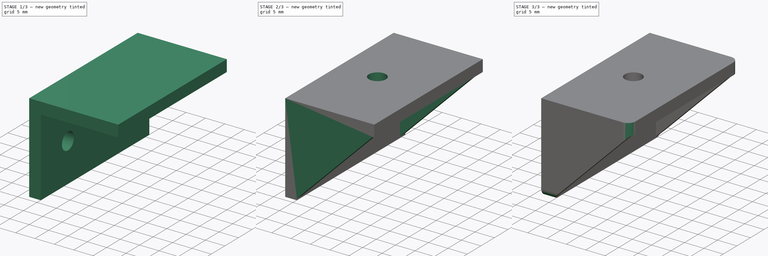
[diagram: build sequence overview — one tinted view per stage of 3, left to right]
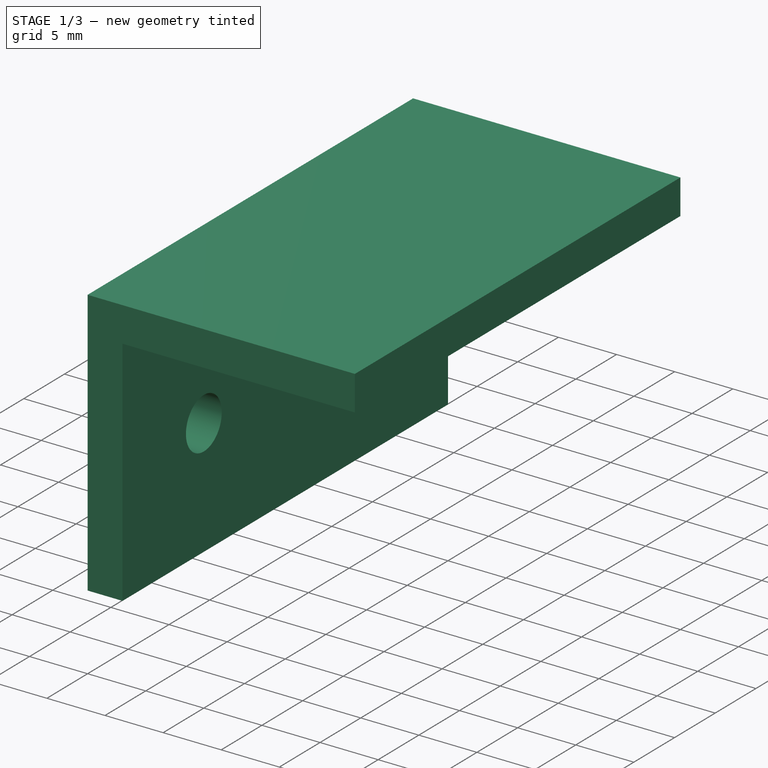
[diagram: stage 1 of 3 — iso view after this stage's code; geometry added in this stage tinted green]
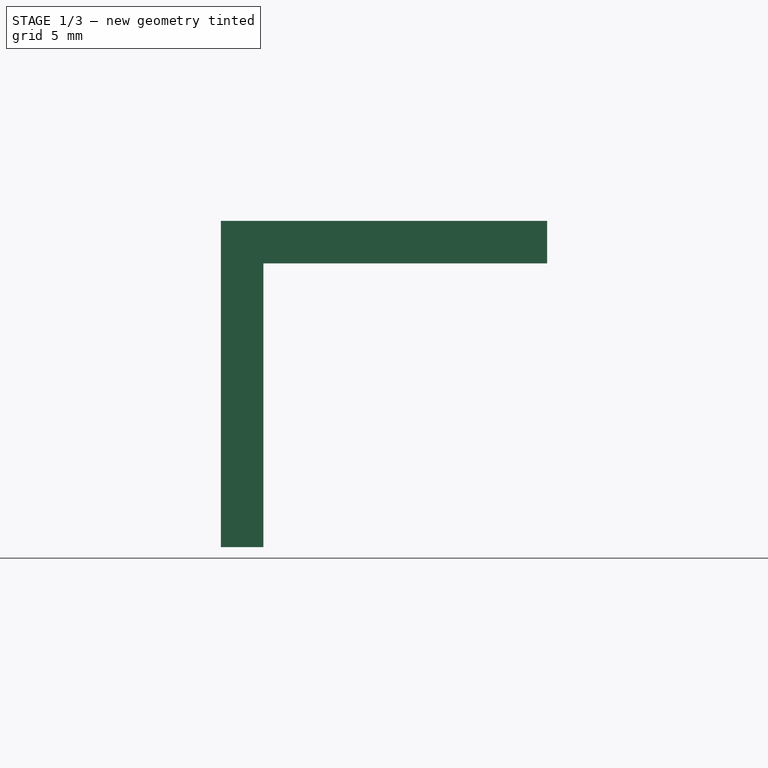
[diagram: stage 1 of 3 — front view after this stage's code; geometry added in this stage tinted green]
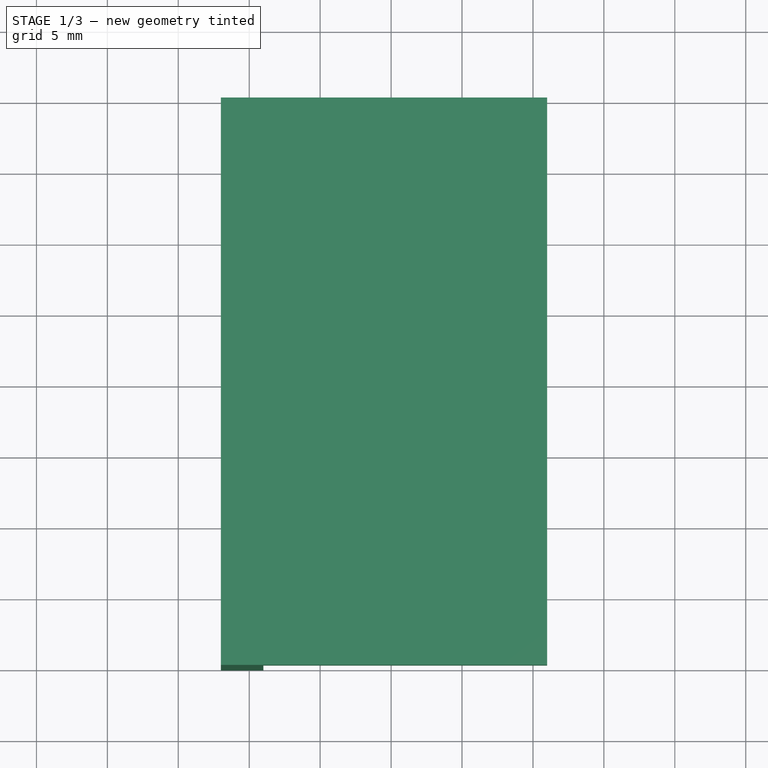
[diagram: stage 1 of 3 — top view after this stage's code; geometry added in this stage tinted green]
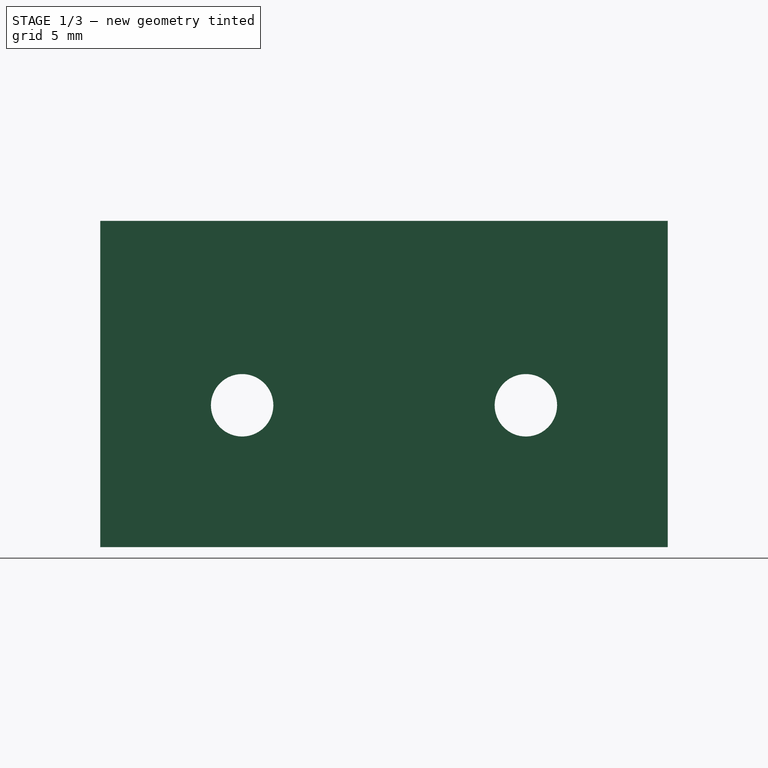
[diagram: stage 1 of 3 — right view after this stage's code; geometry added in this stage tinted green]
FCSTD DOCUMENT  (FreeCAD 0.16R6707 (Git))
Label: Electronics_Plate_Bracket
License: CreativeCommons Attribution-NonCommercial
LicenseURL: http://creativecommons.org/licenses/by-nc/4.0/
objects: Sketcher::SketchObject×5, PartDesign::Pad×4, PartDesign::Fillet×2, Part::Feature×1, PartDesign::Pocket×1
note: 18 computed .brp shape members not serialized (recipe doc carries the construction recipe); baked Part::Feature solids carry a one-line shape summary decoded from their .brp

FEATURE [Sketcher::SketchObject] Sketch
  Placement = pos=(-157,0,0) rot=(0.57735,0.57735,0.57735;2.0944rad)
  sketch-geometry (7):
    g0: LineSegment StartX=60 StartY=13 StartZ=0 EndX=100 EndY=13 EndZ=0
    g1: LineSegment StartX=100 StartY=13 StartZ=0 EndX=100 EndY=-10 EndZ=0
    g2: LineSegment StartX=100 StartY=-10 StartZ=0 EndX=60 EndY=-10 EndZ=0
    g3: LineSegment StartX=60 StartY=-10 StartZ=0 EndX=60 EndY=13 EndZ=0
    g4: Circle CenterX=70 CenterY=0 CenterZ=0 NormalX=0 NormalY=0 NormalZ=1 Radius=2.2
    g5: Circle CenterX=90 CenterY=0 CenterZ=0 NormalX=0 NormalY=0 NormalZ=1 Radius=2.2
    g6: LineSegment [constr] StartX=80 StartY=-10 StartZ=0 EndX=80 EndY=13 EndZ=0
  constraints (22):
    c: Coincident(g0,g1)
    c: Coincident(g1,g2)
    c: Coincident(g2,g3)
    c: Coincident(g3,g0)
    c: Horizontal(g0)
    c: Horizontal(g2)
    c: Vertical(g1)
    c: Vertical(g3)
    c: DistanceY(g1,g-1) = 10
    c: DistanceY(g1,g1) = 23
    c: DistanceX(g0,g0) = 40
    c: PointOnObject(g4,g-1)
    c: PointOnObject(g5,g-1)
    c: Radius(g4) = 2.2
    c: Equal(g4,g5)
    c: DistanceX(g-1,g2) = 60
    c: DistanceX(g4,g5) = 20
    c: PointOnObject(g6,g2)
    c: PointOnObject(g6,g0)
    c: Vertical(g6)
    c: DistanceX(g0,g6) = 20
    c: Symmetric(g4,g5,g6)
FEATURE [PartDesign::Pad] Pad
  Length = 3
  Length2 = 100
  Placement = pos=(-157,0,0) rot=(0.57735,0.57735,0.57735;2.0944rad)
  Sketch = -> Sketch
  Type = 0
FEATURE [Part::Feature] Part__Feature  label="Electronics_Plate"
  Placement = pos=(0,0,16) rot=(0,0,1;0rad)
  shape: bbox 372.8 x 418.1 x 5 mm, 24 faces (baked)
FEATURE [Sketcher::SketchObject] Sketch001
  ExternalGeometry = -> [Pad]
  Placement = pos=(-154,0,0) rot=(0.57735,0.57735,0.57735;2.0944rad)
  Support = -> Pad [Face8]
  sketch-geometry (4):
    g0: LineSegment StartX=60 StartY=13 StartZ=0 EndX=100 EndY=13 EndZ=0
    g1: LineSegment StartX=100 StartY=13 StartZ=0 EndX=100 EndY=10 EndZ=0
    g2: LineSegment StartX=100 StartY=10 StartZ=0 EndX=60 EndY=10 EndZ=0
    g3: LineSegment StartX=60 StartY=10 StartZ=0 EndX=60 EndY=13 EndZ=0
  constraints (11):
    c: Coincident(g0,g1)
    c: Coincident(g1,g2)
    c: Coincident(g2,g3)
    c: Coincident(g3,g0)
    c: Horizontal(g0)
    c: Horizontal(g2)
    c: Vertical(g1)
    c: Vertical(g3)
    c: Coincident(g0,g-3)
    c: Coincident(g0,g-3)
    c: DistanceY(g1,g1) = 3
FEATURE [PartDesign::Pad] Pad001
  Length = 20
  Length2 = 100
  Placement = pos=(-157,0,0) rot=(0.57735,0.57735,0.57735;2.0944rad)
  Sketch = -> Sketch001
  Type = 0
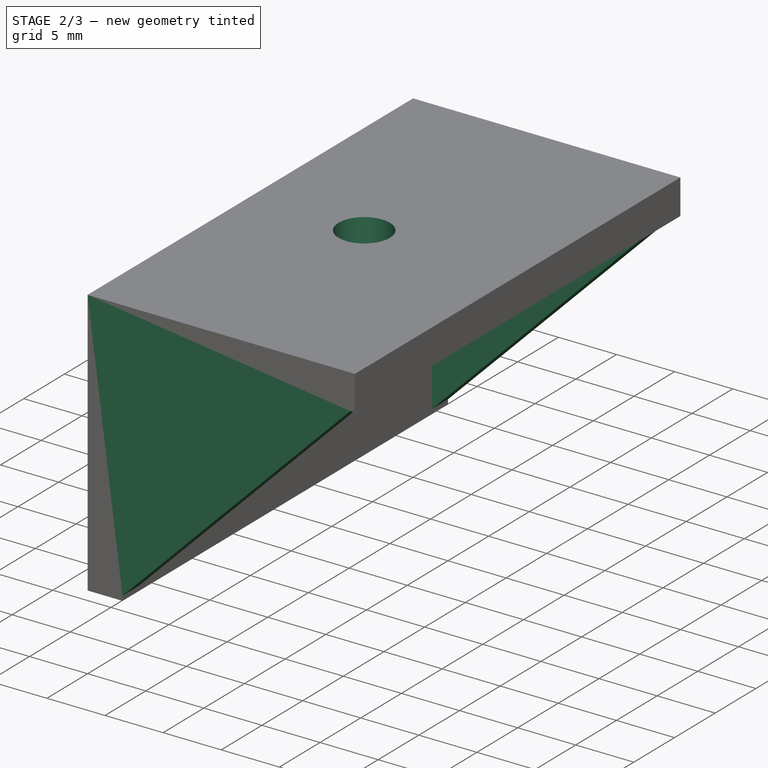
[diagram: stage 2 of 3 — iso view after this stage's code; geometry added in this stage tinted green]
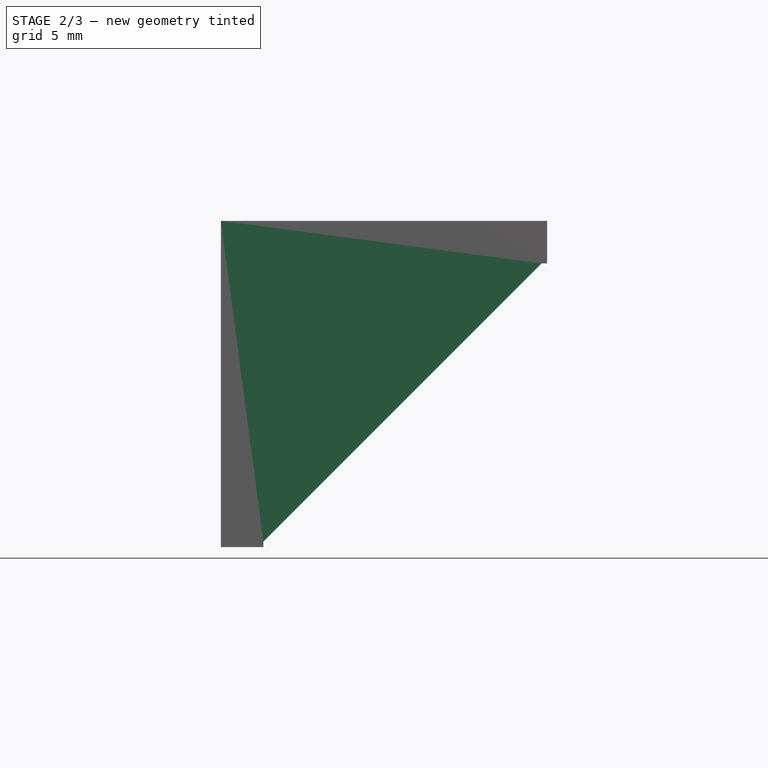
[diagram: stage 2 of 3 — front view after this stage's code; geometry added in this stage tinted green]
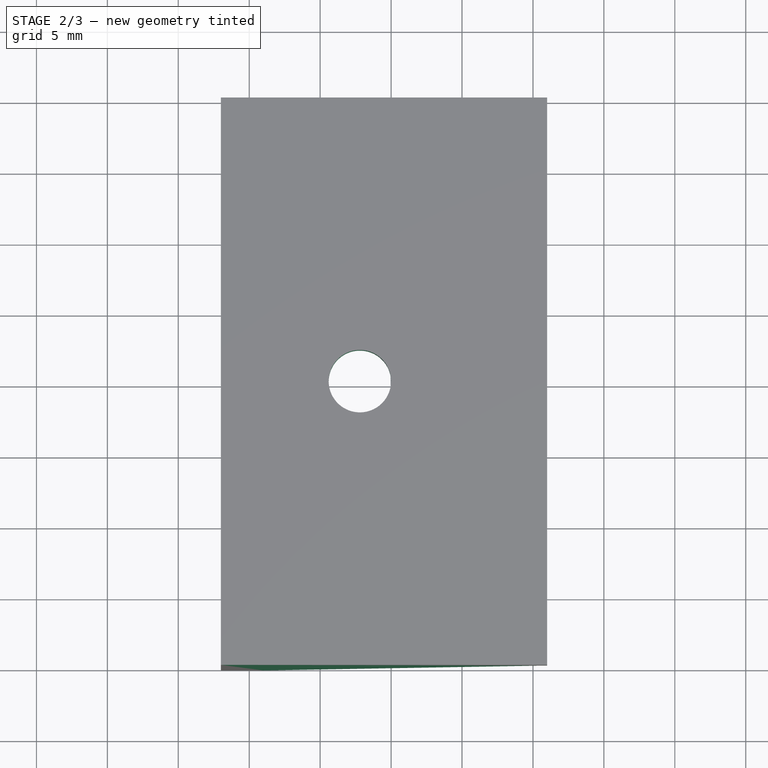
[diagram: stage 2 of 3 — top view after this stage's code; geometry added in this stage tinted green]
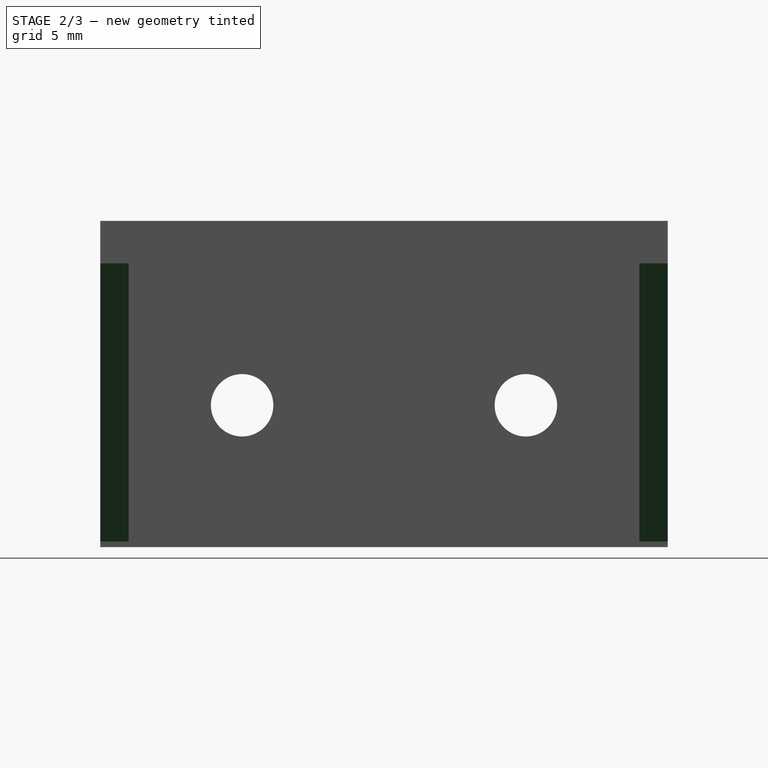
[diagram: stage 2 of 3 — right view after this stage's code; geometry added in this stage tinted green]
FEATURE [Sketcher::SketchObject] Sketch002
  ExternalGeometry = -> [Pad001]
  Placement = pos=(-157,0,13) rot=(0,0,-1;1.5708rad)
  Support = -> Pad001 [Face8]
  sketch-geometry (1):
    g0: Circle CenterX=-80 CenterY=9.8 CenterZ=0 NormalX=0 NormalY=0 NormalZ=1 Radius=2.2
  constraints (3):
    c: DistanceY(g-3,g0) = 9.8
    c: DistanceX(g0,g-3) = 20
    c: Radius(g0) = 2.2
FEATURE [PartDesign::Pocket] Pocket
  Length = 5
  Placement = pos=(-157,0,0) rot=(0.57735,0.57735,0.57735;2.0944rad)
  Sketch = -> Sketch002
  Type = 0
FEATURE [Sketcher::SketchObject] Sketch003
  Placement = pos=(-157,60,0) rot=(0.57735,0.57735,-0.57735;2.0944rad)
  Support = -> Pocket [Face5]
  sketch-geometry (3):
    g0: LineSegment StartX=-10.2 StartY=22.8 StartZ=0 EndX=-10.2 EndY=2.8 EndZ=0
    g1: LineSegment StartX=-10.2 StartY=2.8 StartZ=0 EndX=9.8 EndY=2.8 EndZ=0
    g2: LineSegment StartX=9.8 StartY=2.8 StartZ=0 EndX=-10.2 EndY=22.8 EndZ=0
  constraints (9):
    c: Coincident(g0,g1)
    c: Coincident(g1,g2)
    c: Coincident(g2,g0)
    c: Horizontal(g1)
    c: Vertical(g0)
    c: DistanceY(g-1,g1) = 2.8
    c: DistanceX(g0,g-1) = 10.2
    c: DistanceY(g0,g0) = 20
    c: Equal(g1,g0)
FEATURE [PartDesign::Pad] Pad002
  Length = 2
  Length2 = 100
  Placement = pos=(-157,0,0) rot=(0.57735,0.57735,0.57735;2.0944rad)
  Reversed = true
  Sketch = -> Sketch003
  Type = 0
FEATURE [Sketcher::SketchObject] Sketch004
  Placement = pos=(-157,100,0) rot=(0.57735,0.57735,0.57735;4.18879rad)
  Support = -> Pad002 [Face3]
  sketch-geometry (3):
    g0: LineSegment StartX=-9.8 StartY=2.8 StartZ=0 EndX=10.2 EndY=2.8 EndZ=0
    g1: LineSegment StartX=10.2 StartY=2.8 StartZ=0 EndX=10.2 EndY=22.8 EndZ=0
    g2: LineSegment StartX=10.2 StartY=22.8 StartZ=0 EndX=-9.8 EndY=2.8 EndZ=0
  constraints (9):
    c: Horizontal(g0)
    c: Coincident(g0,g1)
    c: Vertical(g1)
    c: Coincident(g1,g2)
    c: Coincident(g2,g0)
    c: Equal(g0,g1)
    c: DistanceY(g1,g1) = 20
    c: DistanceY(g-1,g0) = 2.8
    c: DistanceX(g-1,g0) = 10.2
FEATURE [PartDesign::Pad] Pad003
  Length = 2
  Length2 = 100
  Placement = pos=(-157,0,0) rot=(0.57735,0.57735,0.57735;2.0944rad)
  Reversed = true
  Sketch = -> Sketch004
  Type = 0
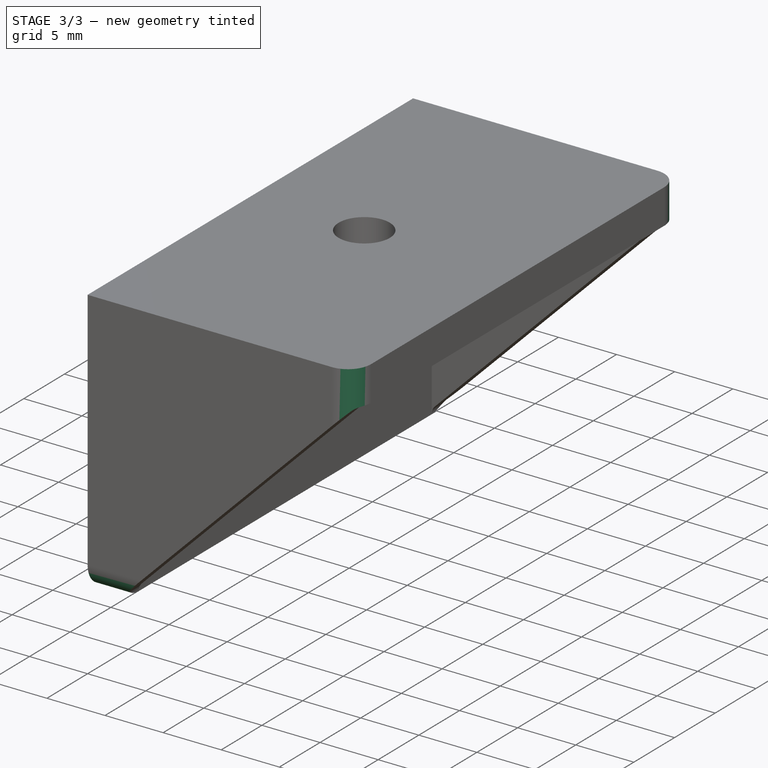
[diagram: stage 3 of 3 — iso view after this stage's code; geometry added in this stage tinted green]
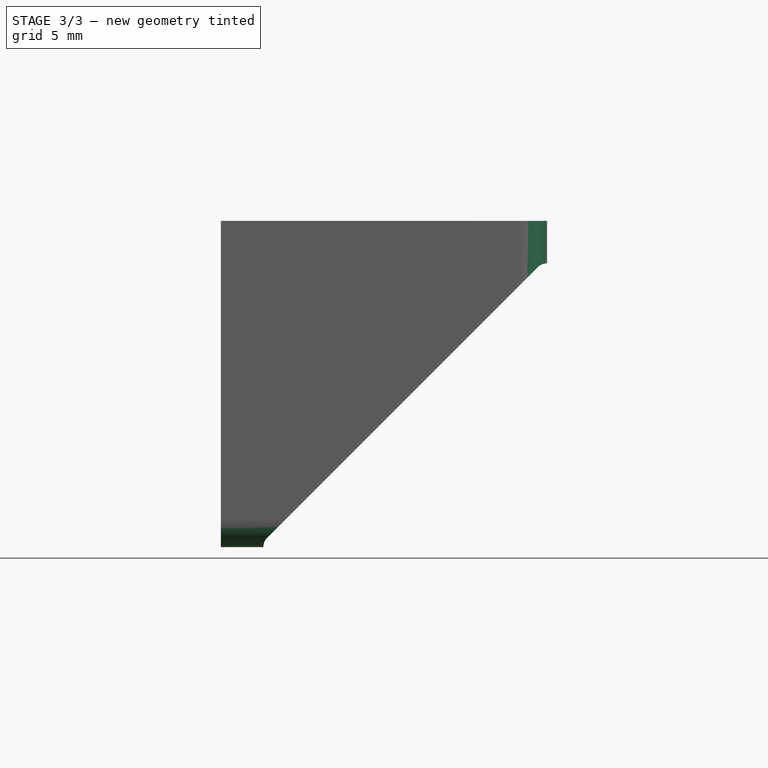
[diagram: stage 3 of 3 — front view after this stage's code; geometry added in this stage tinted green]
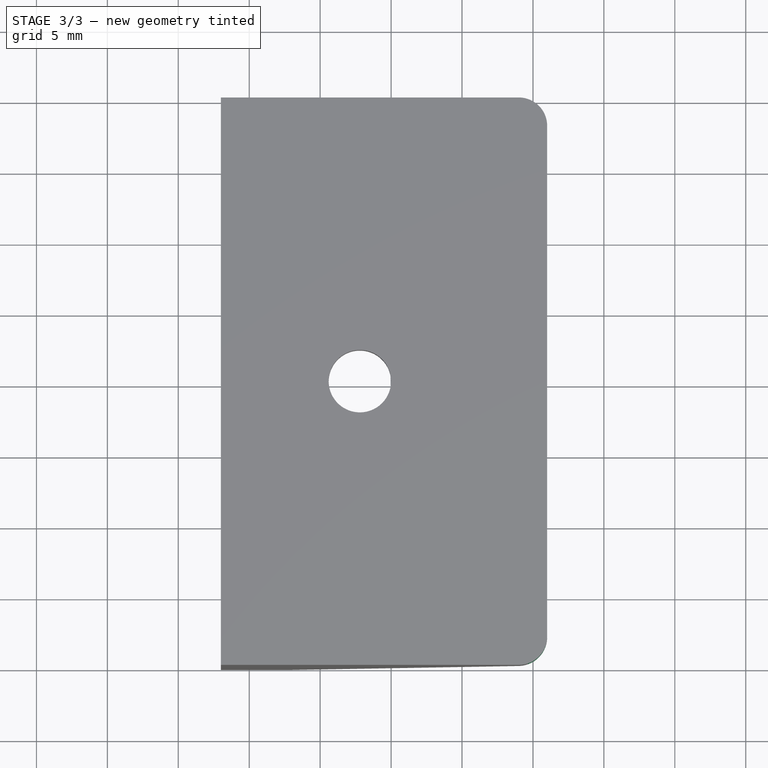
[diagram: stage 3 of 3 — top view after this stage's code; geometry added in this stage tinted green]
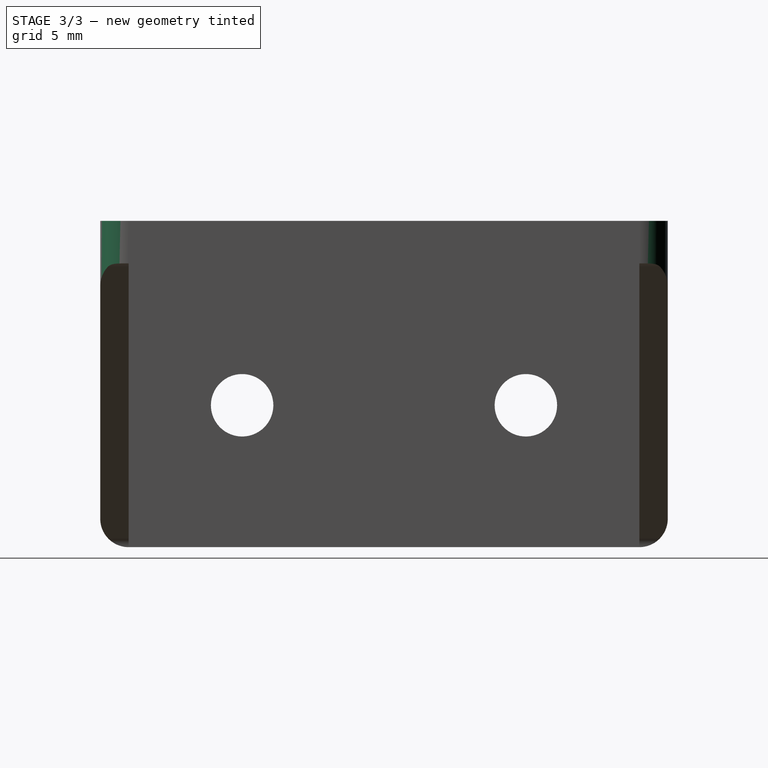
[diagram: stage 3 of 3 — right view after this stage's code; geometry added in this stage tinted green]
FEATURE [PartDesign::Fillet] Fillet
  Base = -> Pad003 [Edge33,Edge28,Edge30,Edge36]
  Placement = pos=(-157,0,0) rot=(0.57735,0.57735,0.57735;2.0944rad)
  Radius = 0.9
FEATURE [PartDesign::Fillet] Fillet001
  Base = -> Fillet [Edge23,Edge3,Edge9,Edge44]
  Placement = pos=(-157,0,0) rot=(0.57735,0.57735,0.57735;2.0944rad)
  Radius = 2
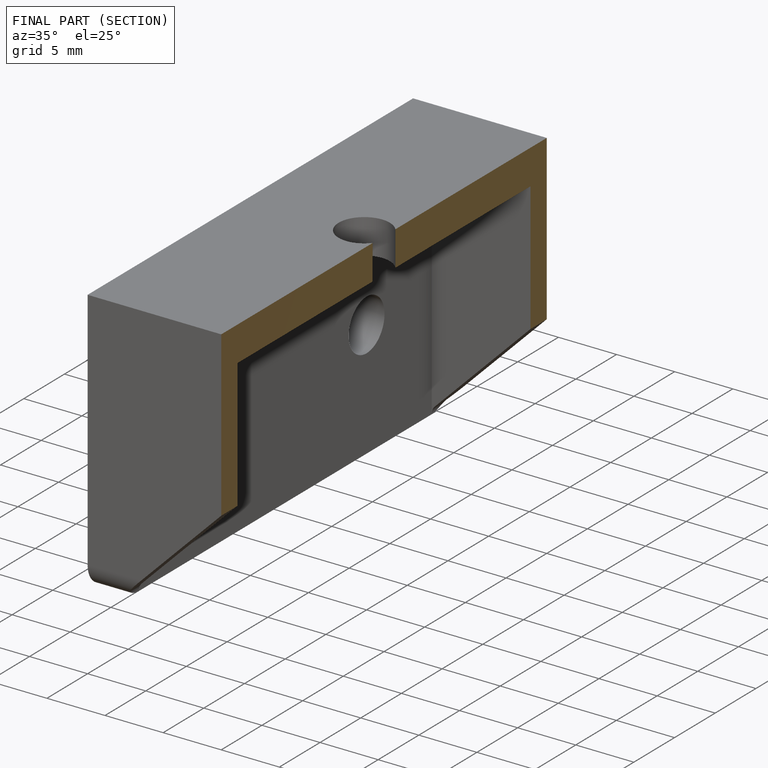
[diagram: finished part — half-section view (interior)]
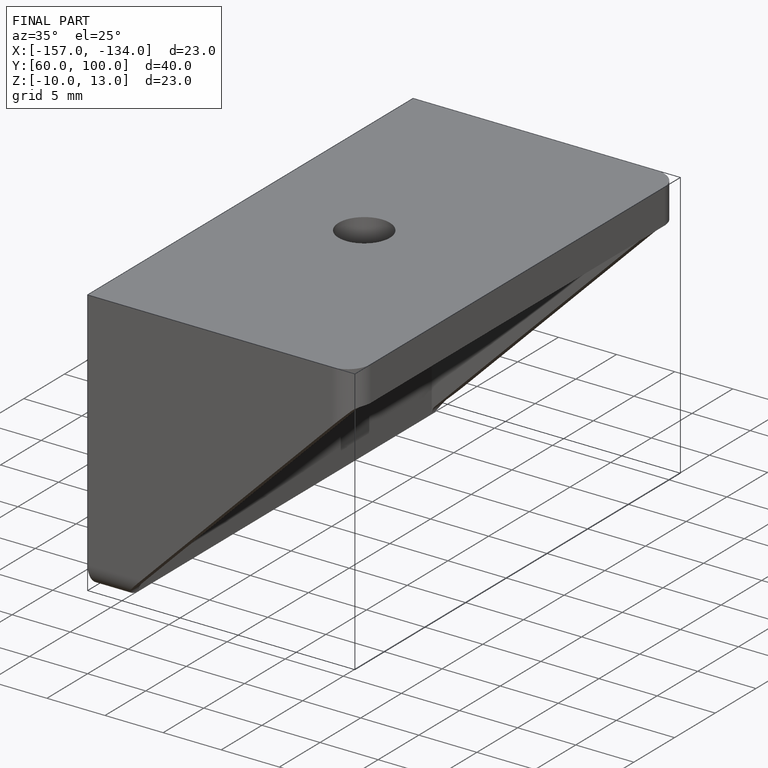
[diagram: finished part — iso view with bounding-box wireframe]
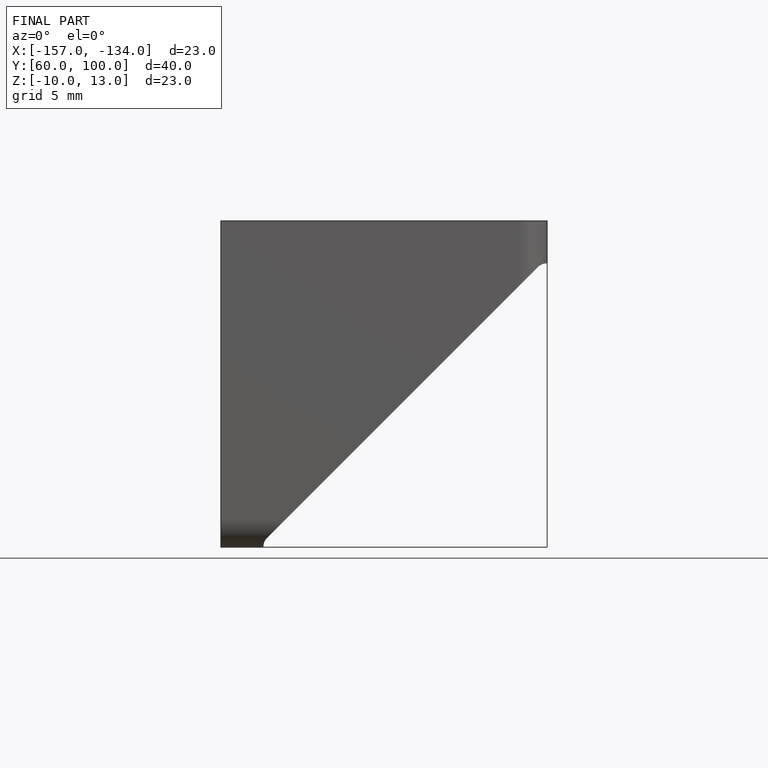
[diagram: finished part — front view with bounding-box wireframe]
